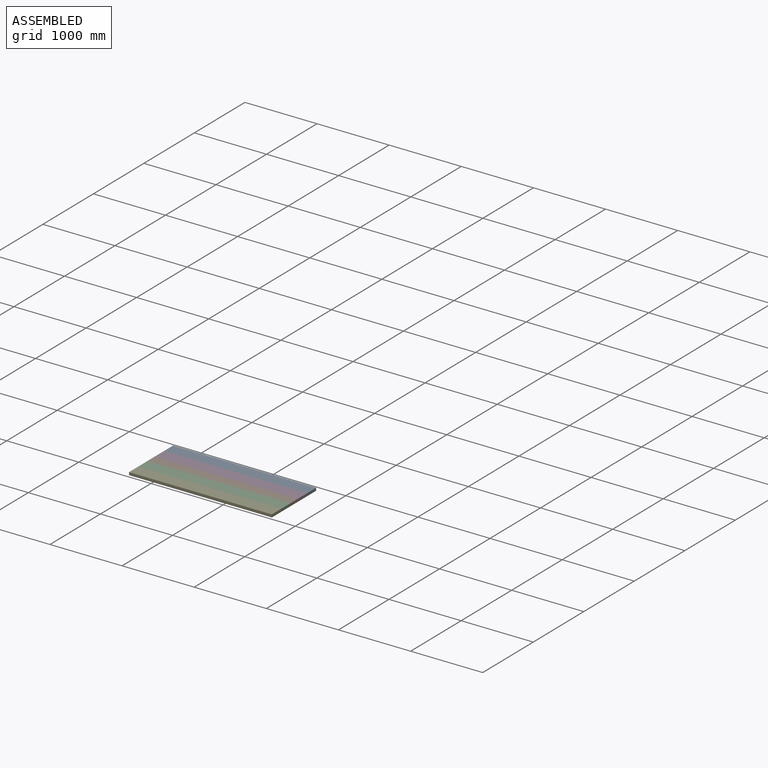
[diagram: assembled view]
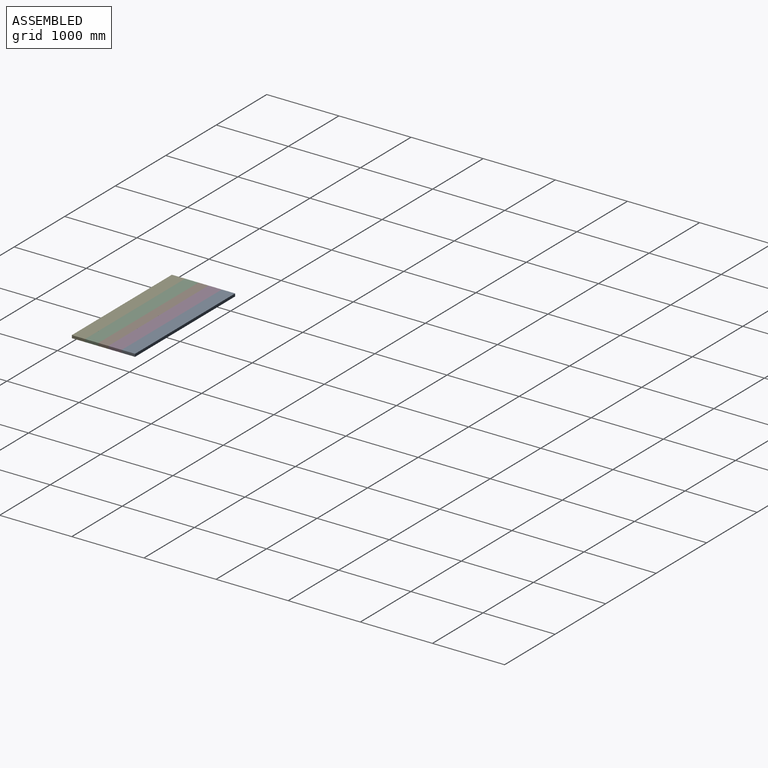
[diagram: assembled view, second angle]
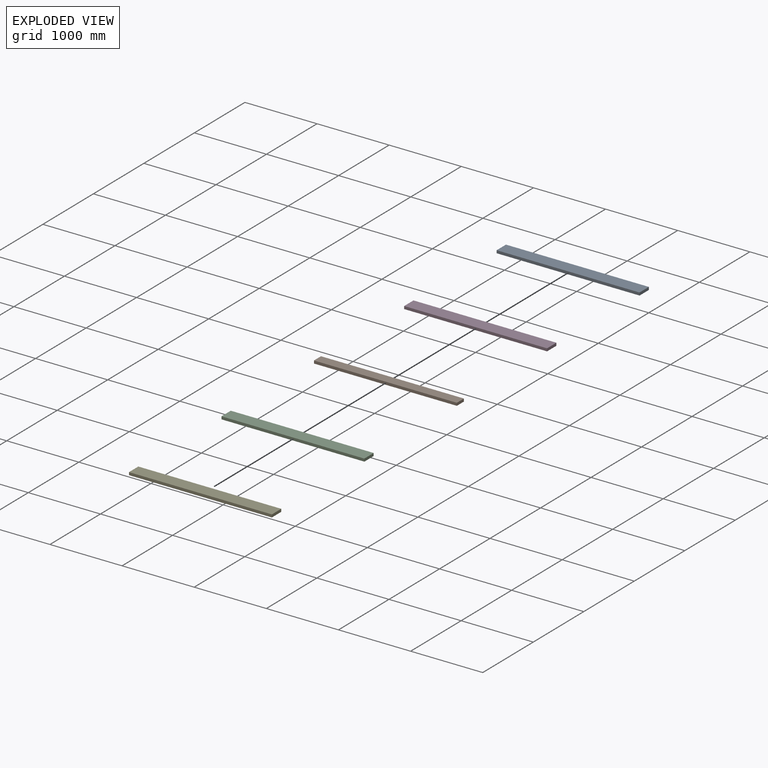
[diagram: exploded view]
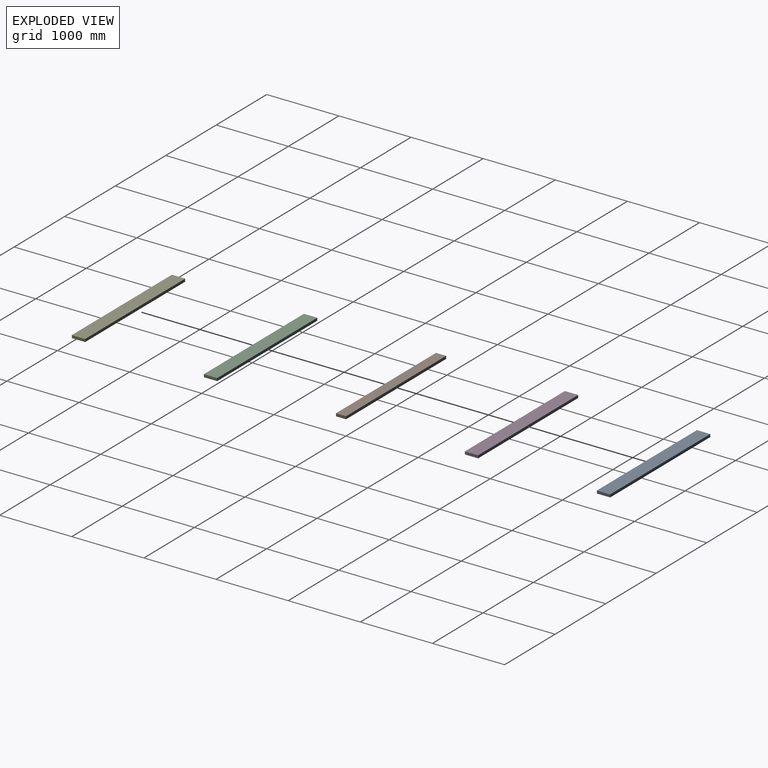
[diagram: exploded view, second angle]
ASSEMBLY  parts=5 mates=4
PART A: 6 faces, bbox 1981.2x184.2x38.1 mm
  f0: plane 184.15x38.1mm, normal (-1,0,0), area 7016.1mm2, adj f1,f3,f4,f5
  f1: plane 1981.2x38.1mm, normal (0,-1,0), area 75483.7mm2, adj f0,f2,f4,f5
  f2: plane 184.15x38.1mm, normal (1,0,0), area 7016.1mm2, adj f1,f3,f4,f5
  f3: plane 1981.2x38.1mm, normal (0,1,0), area 75483.7mm2, adj f0,f2,f4,f5
  f4: plane 1981.2x184.15mm, normal (0,0,1), area 364838mm2, adj f0,f1,f2,f3
  f5: plane 1981.2x184.15mm, normal (0,0,-1), area 364838mm2, adj f0,f1,f2,f3
PART B: 6 faces, bbox 1981.2x139.7x38.1 mm
  f0: plane 139.7x38.1mm, normal (-1,0,0), area 5322.6mm2, adj f1,f3,f4,f5
  f1: plane 1981.2x38.1mm, normal (0,-1,0), area 75483.7mm2, adj f0,f2,f4,f5
  f2: plane 139.7x38.1mm, normal (1,0,0), area 5322.6mm2, adj f1,f3,f4,f5
  f3: plane 1981.2x38.1mm, normal (0,1,0), area 75483.7mm2, adj f0,f2,f4,f5
  f4: plane 1981.2x139.7mm, normal (0,0,1), area 276773.6mm2, adj f0,f1,f2,f3
  f5: plane 1981.2x139.7mm, normal (0,0,-1), area 276773.6mm2, adj f0,f1,f2,f3
PART C: same geometry as A
PART D: same geometry as A
PART E: same geometry as A
PLACE A t=(-291.99,674.63,-14.2)mm
PLACE B t=(-291.99,350.78,-14.2)mm
PLACE C t=(-291.99,166.63,-14.2)mm
PLACE D t=(-291.99,490.48,-14.2)mm
PLACE E t=(-291.99,-17.52,-14.2)mm
MATE fastened C.f3 <-> B.f1  axis (0,1,0) through (698.61,350.78,4.85)mm
MATE fastened E.f3 <-> C.f1  axis (0,1,0) through (698.61,166.63,4.85)mm
MATE fastened B.f3 <-> D.f1  axis (0,1,0) through (698.61,490.48,4.85)mm
MATE fastened A.f1 <-> D.f3  axis (0,-1,0) through (698.61,674.63,4.85)mm
